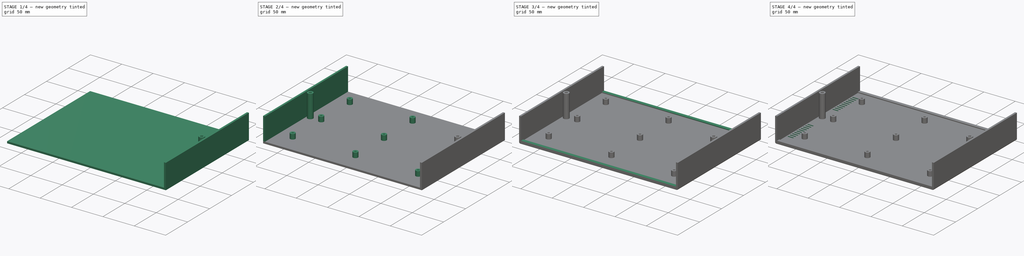
[diagram: build sequence overview — one tinted view per stage of 4, left to right]
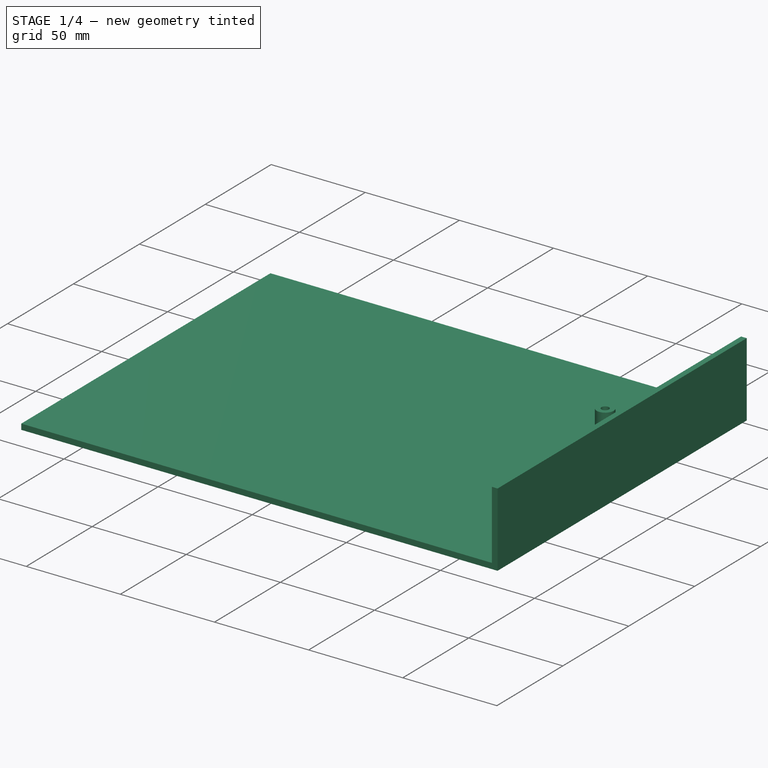
[diagram: stage 1 of 4 — iso view after this stage's code; geometry added in this stage tinted green]
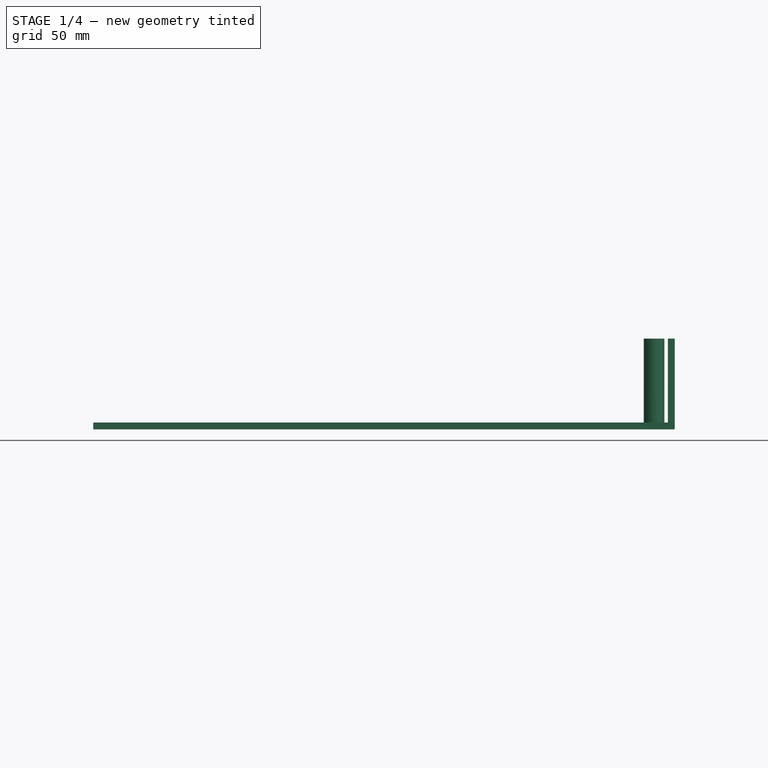
[diagram: stage 1 of 4 — front view after this stage's code; geometry added in this stage tinted green]
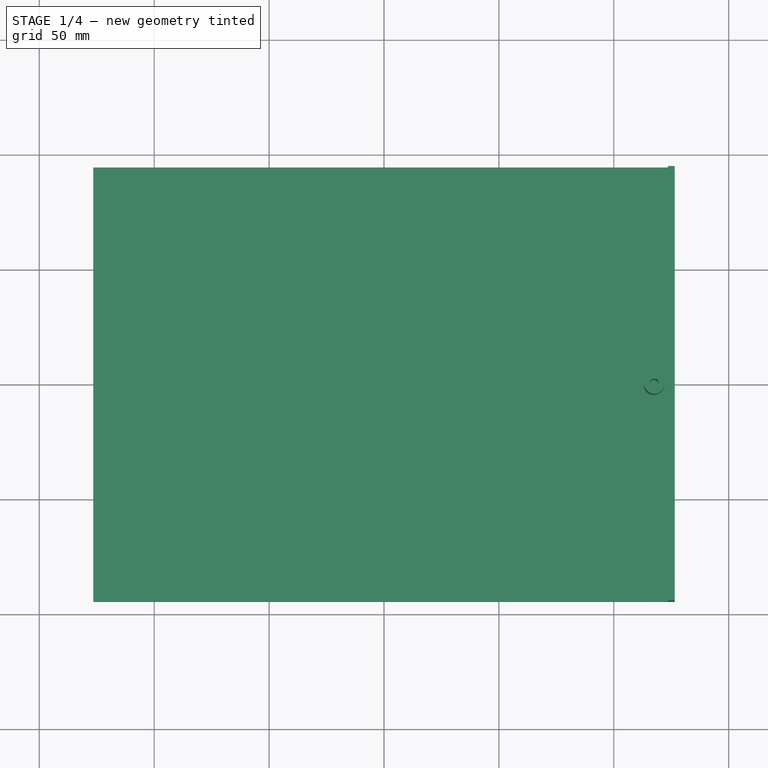
[diagram: stage 1 of 4 — top view after this stage's code; geometry added in this stage tinted green]
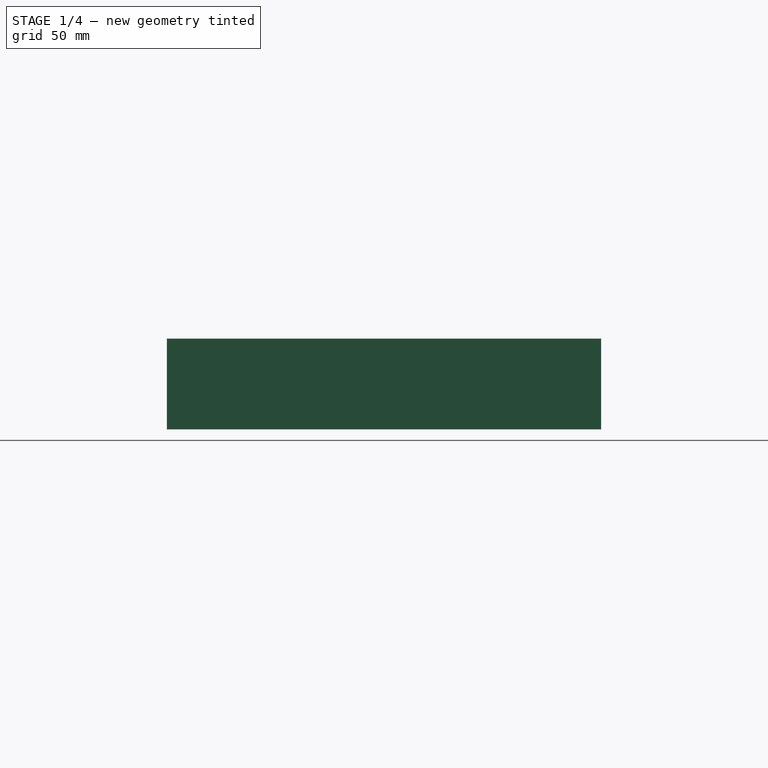
[diagram: stage 1 of 4 — right view after this stage's code; geometry added in this stage tinted green]
FCSTD DOCUMENT  (FreeCAD 1.0R39319 (Git))
Label: Flat Base
License: All rights reserved
LicenseURL: http://en.wikipedia.org/wiki/All_rights_reserved
objects: Sketcher::SketchObject×5, PartDesign::Pad×4, PartDesign::Mirrored×4, PartDesign::Fillet×1, PartDesign::Pocket×1, PartDesign::Body×1, Image::ImagePlane×1
note: 37 computed .brp shape members not serialized (recipe doc carries the construction recipe); baked Part::Feature solids carry a one-line shape summary decoded from their .brp

FEATURE [Sketcher::SketchObject] Sketch
  ArcFitTolerance = 0
  AttachmentSupport = -> [XY_Plane]
  FullyConstrained = true
  MakeInternals = false
  MapMode = 5
  sketch-geometry (4):
    g0: LineSegment StartX=-126.5 StartY=94.5 StartZ=0 EndX=126.5 EndY=94.5 EndZ=0
    g1: LineSegment StartX=126.5 StartY=94.5 StartZ=0 EndX=126.5 EndY=-94.5 EndZ=0
    g2: LineSegment StartX=126.5 StartY=-94.5 StartZ=0 EndX=-126.5 EndY=-94.5 EndZ=0
    g3: LineSegment StartX=-126.5 StartY=-94.5 StartZ=0 EndX=-126.5 EndY=94.5 EndZ=0
  constraints (10):
    c: Coincident(g0,g1)
    c: Coincident(g1,g2)
    c: Coincident(g2,g3)
    c: Coincident(g3,g0)
    c: Horizontal(g2)
    c: Vertical(g1)
    c: Symmetric(g0,g0,g-2)
    c: Symmetric(g2,g0,g-1)
    c: DistanceX(g0,g0) = 253
    c: DistanceY(g1,g1) = 189
FEATURE [PartDesign::Pad] Pad
  AllowMultiFace = false
  Direction = (0,0,1)
  Length = 3
  Length2 = 100
  Profile = -> Sketch
  Suppressed = false
  Type = 0
FEATURE [Sketcher::SketchObject] Sketch001
  ArcFitTolerance = 0
  AttachmentSupport = -> [Pad]
  FullyConstrained = true
  MakeInternals = false
  MapMode = 5
  Placement = pos=(0,0,3) rot=(0,0,1;0rad)
  sketch-geometry (6):
    g0: LineSegment StartX=126.5 StartY=94.5 StartZ=0 EndX=123.5 EndY=94.5 EndZ=0
    g1: LineSegment StartX=123.5 StartY=94.5 StartZ=0 EndX=123.5 EndY=-94.5 EndZ=0
    g2: LineSegment StartX=123.5 StartY=-94.5 StartZ=0 EndX=126.5 EndY=-94.5 EndZ=0
    g3: LineSegment StartX=126.5 StartY=-94.5 StartZ=0 EndX=126.5 EndY=94.5 EndZ=0
    g4: Circle CenterX=117.5 CenterY=0 CenterZ=0 NormalX=0 NormalY=0 NormalZ=1 AngleXU=0 Radius=4.5
    g5: Circle CenterX=117.5 CenterY=0 CenterZ=0 NormalX=0 NormalY=0 NormalZ=1 AngleXU=0 Radius=2
  constraints (16):
    c: Coincident(g0,g1)
    c: Coincident(g1,g2)
    c: Coincident(g2,g3)
    c: Coincident(g3,g0)
    c: Horizontal(g0)
    c: Horizontal(g2)
    c: Vertical(g1)
    c: Symmetric(g0,g2,g-1)
    c: DistanceX(g0,g0) = 3
    c: DistanceX(g-1,g0) = 126.5
    c: DistanceY(g3,g3) = 189
    c: PointOnObject(g4,g-1)
    c: Coincident(g5,g4)
    c: Diameter(g5) = 4
    c: Diameter(g4) = 9
    c: DistanceX(g4) = 117.5
FEATURE [PartDesign::Pad] Pad001
  AllowMultiFace = false
  BaseFeature = -> Pad
  Direction = (0,0,1)
  Length = 36.5
  Length2 = 100
  Profile = -> Sketch001
  Suppressed = false
  Type = 0
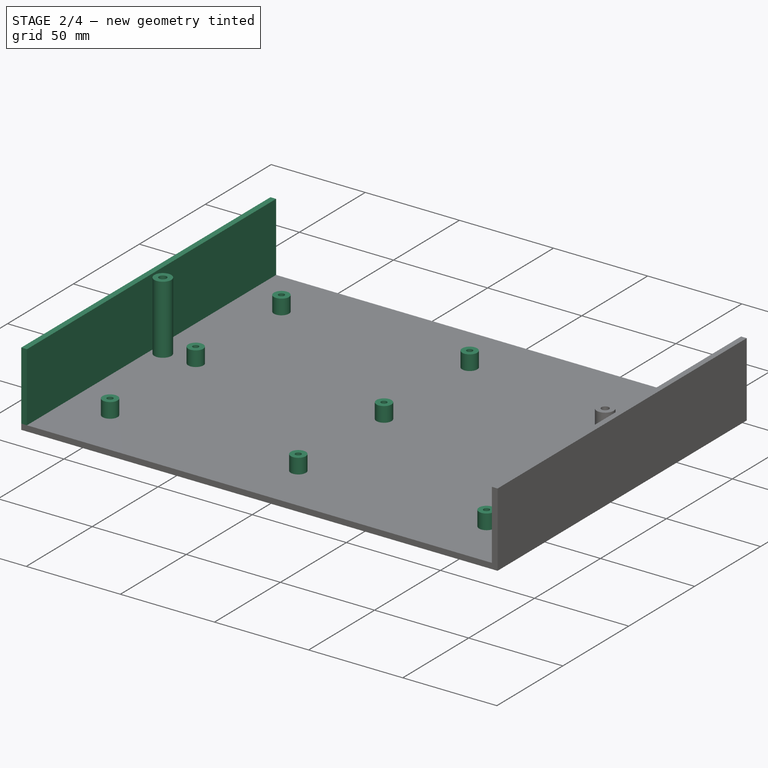
[diagram: stage 2 of 4 — iso view after this stage's code; geometry added in this stage tinted green]
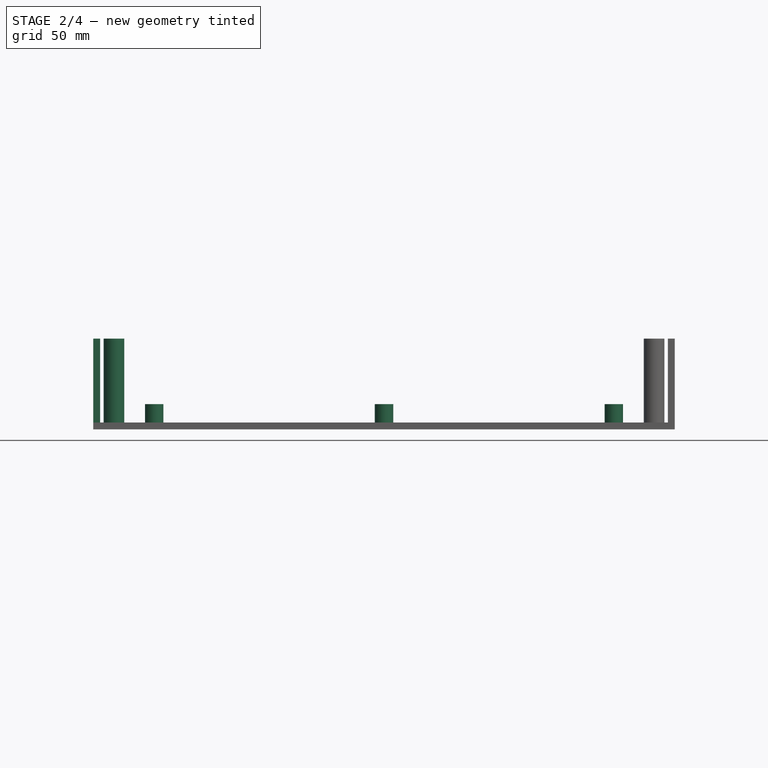
[diagram: stage 2 of 4 — front view after this stage's code; geometry added in this stage tinted green]
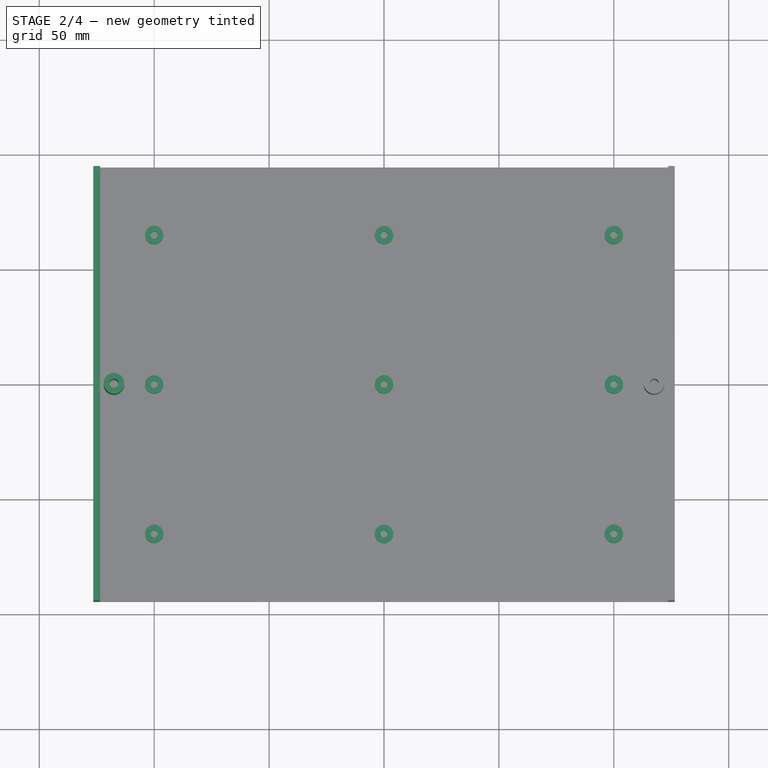
[diagram: stage 2 of 4 — top view after this stage's code; geometry added in this stage tinted green]
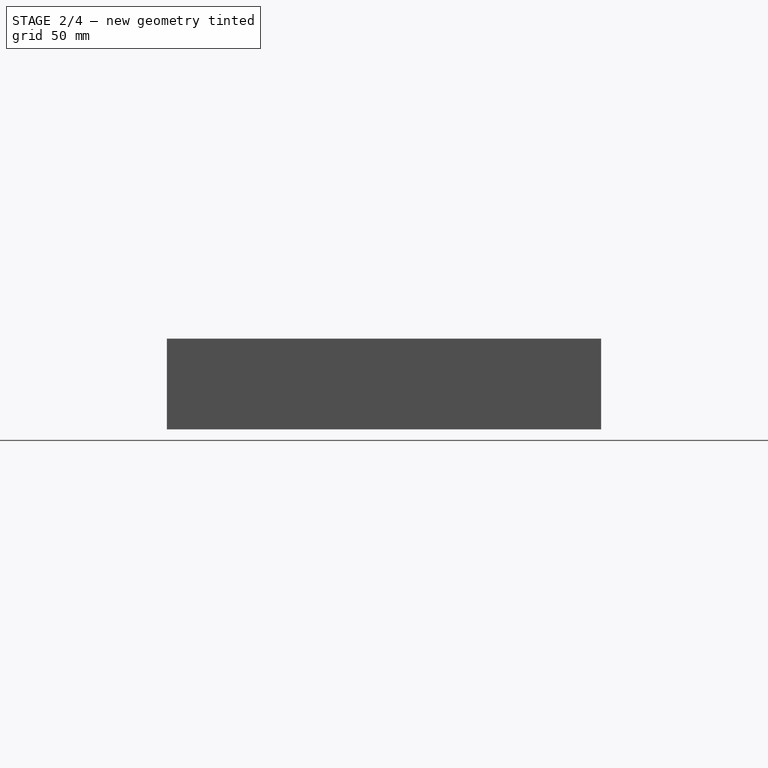
[diagram: stage 2 of 4 — right view after this stage's code; geometry added in this stage tinted green]
FEATURE [Sketcher::SketchObject] Sketch005  label="Sketch004"
  ArcFitTolerance = 0
  FullyConstrained = true
  MakeInternals = false
  MapMode = 5
  Placement = pos=(0,0,3) rot=(0,0,1;0rad)
  sketch-geometry (8):
    g0: LineSegment StartX=0 StartY=89.5 StartZ=0 EndX=123.5 EndY=89.5 EndZ=0
    g1: LineSegment StartX=123.5 StartY=89.5 StartZ=0 EndX=123.5 EndY=94.5 EndZ=0
    g2: LineSegment StartX=123.5 StartY=94.5 StartZ=0 EndX=0 EndY=94.5 EndZ=0
    g3: LineSegment StartX=0 StartY=94.5 StartZ=0 EndX=0 EndY=89.5 EndZ=0
    g4: LineSegment StartX=0 StartY=-94.5 StartZ=0 EndX=123.5 EndY=-94.5 EndZ=0
    g5: LineSegment StartX=123.5 StartY=-94.5 StartZ=0 EndX=123.5 EndY=-89.5 EndZ=0
    g6: LineSegment StartX=123.5 StartY=-89.5 StartZ=0 EndX=0 EndY=-89.5 EndZ=0
    g7: LineSegment StartX=0 StartY=-89.5 StartZ=0 EndX=0 EndY=-94.5 EndZ=0
  constraints (23):
    c: Coincident(g0,g1)
    c: Coincident(g1,g2)
    c: Coincident(g2,g3)
    c: Coincident(g3,g0)
    c: Horizontal(g0)
    c: Horizontal(g2)
    c: Vertical(g1)
    c: Vertical(g3)
    c: PointOnObject(g0,g-2)
    c: Coincident(g4,g5)
    c: Coincident(g5,g6)
    c: Coincident(g6,g7)
    c: Coincident(g7,g4)
    c: Horizontal(g4)
    c: Horizontal(g6)
    c: Vertical(g5)
    c: Vertical(g7)
    c: PointOnObject(g4,g-2)
    c: Symmetric(g4,g1,g-1)
    c: Equal(g1,g5)
    c: DistanceY(g1,g1) = 5
    c: DistanceX(g2,g2) = 123.5
    c: DistanceY(g4,g2) = 189
FEATURE [Sketcher::SketchObject] Sketch006  label="Sketch003"
  ArcFitTolerance = 0
  AttachmentSupport = -> [Pad001]
  FullyConstrained = true
  MakeInternals = false
  MapMode = 5
  Placement = pos=(0,0,3) rot=(0,0,1;0rad)
  sketch-geometry (12):
    g0: Circle CenterX=100 CenterY=65 CenterZ=0 NormalX=0 NormalY=0 NormalZ=1 AngleXU=0 Radius=4
    g1: Circle CenterX=100 CenterY=-65 CenterZ=0 NormalX=0 NormalY=0 NormalZ=1 AngleXU=0 Radius=4
    g2: Circle CenterX=0 CenterY=65 CenterZ=0 NormalX=0 NormalY=0 NormalZ=1 AngleXU=0 Radius=4
    g3: Circle CenterX=0 CenterY=0 CenterZ=0 NormalX=0 NormalY=0 NormalZ=1 AngleXU=0 Radius=4
    g4: Circle CenterX=0 CenterY=-65 CenterZ=0 NormalX=0 NormalY=0 NormalZ=1 AngleXU=0 Radius=4
    g5: Circle CenterX=100 CenterY=65 CenterZ=0 NormalX=0 NormalY=0 NormalZ=1 AngleXU=0 Radius=1.55
    g6: Circle CenterX=0 CenterY=65 CenterZ=0 NormalX=0 NormalY=0 NormalZ=1 AngleXU=0 Radius=1.55
    g7: Circle CenterX=0 CenterY=0 CenterZ=0 NormalX=0 NormalY=0 NormalZ=1 AngleXU=0 Radius=1.55
    g8: Circle CenterX=100 CenterY=0 CenterZ=0 NormalX=0 NormalY=0 NormalZ=1 AngleXU=0 Radius=1.55
    g9: Circle CenterX=100 CenterY=-65 CenterZ=0 NormalX=0 NormalY=0 NormalZ=1 AngleXU=0 Radius=1.55
    g10: Circle CenterX=0 CenterY=-65 CenterZ=0 NormalX=0 NormalY=0 NormalZ=1 AngleXU=0 Radius=1.55
    g11: Circle CenterX=100 CenterY=0 CenterZ=0 NormalX=0 NormalY=0 NormalZ=1 AngleXU=0 Radius=4
  constraints (28):
    c: PointOnObject(g2,g-2)
    c: Coincident(g3,g-1)
    c: Equal(g0,g2)
    c: Equal(g2,g3)
    c: Equal(g1,g4)
    c: Symmetric(g2,g4,g-1)
    c: Horizontal(g2,g0)
    c: Horizontal(g1,g4)
    c: Diameter(g3) = 8
    c: DistanceX(g2,g0) = 100
    c: DistanceY(g3,g2) = 65
    c: Coincident(g5,g0)
    c: Coincident(g7,g3)
    c: Coincident(g9,g1)
    c: Coincident(g10,g4)
    c: Equal(g10,g9)
    c: Equal(g9,g7)
    c: Equal(g7,g8)
    c: Equal(g8,g5)
    c: Equal(g5,g6)
    c: Diameter(g6) = 3.1
    c: Coincident(g6,g2)
    c: PointOnObject(g11,g-1)
    c: Equal(g11,g3)
    c: Coincident(g8,g11)
    c: Vertical(g8,g0)
    c: Vertical(g1,g8)
    c: Equal(g4,g3)
FEATURE [PartDesign::Mirrored] Mirrored
  BaseFeature = -> Pad001
  MirrorPlane = -> YZ_Plane
  Originals = -> [Pad001]
  Suppressed = false
  TransformMode = 0
FEATURE [PartDesign::Pad] Pad002
  AllowMultiFace = false
  BaseFeature = -> Mirrored
  Direction = (0,0,1)
  Length = 8
  Length2 = 100
  Profile = -> Sketch006
  Suppressed = false
  Type = 0
FEATURE [PartDesign::Mirrored] Mirrored001
  BaseFeature = -> Pad002
  MirrorPlane = -> YZ_Plane
  Originals = -> [Pad002]
  Suppressed = false
  TransformMode = 0
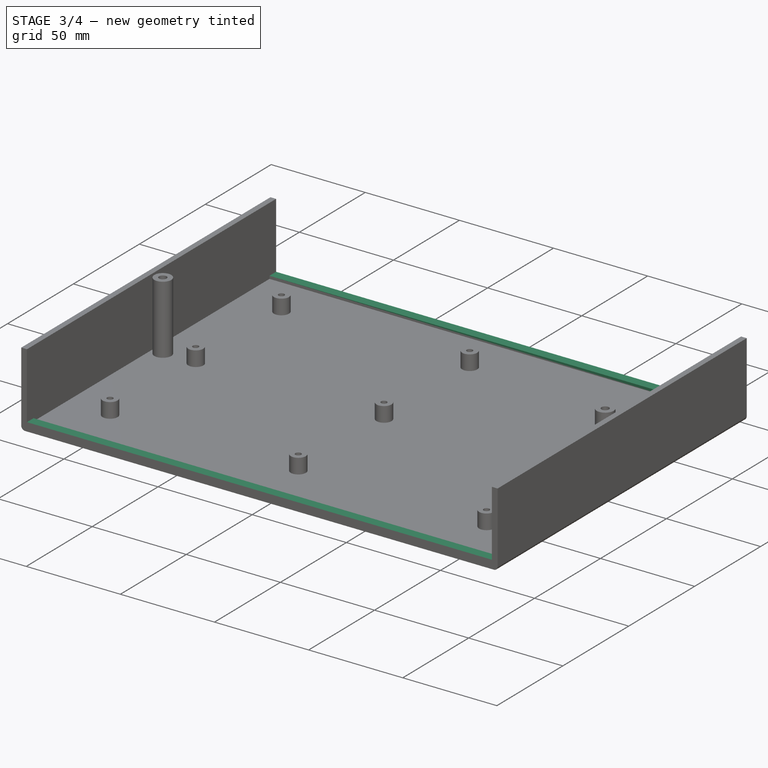
[diagram: stage 3 of 4 — iso view after this stage's code; geometry added in this stage tinted green]
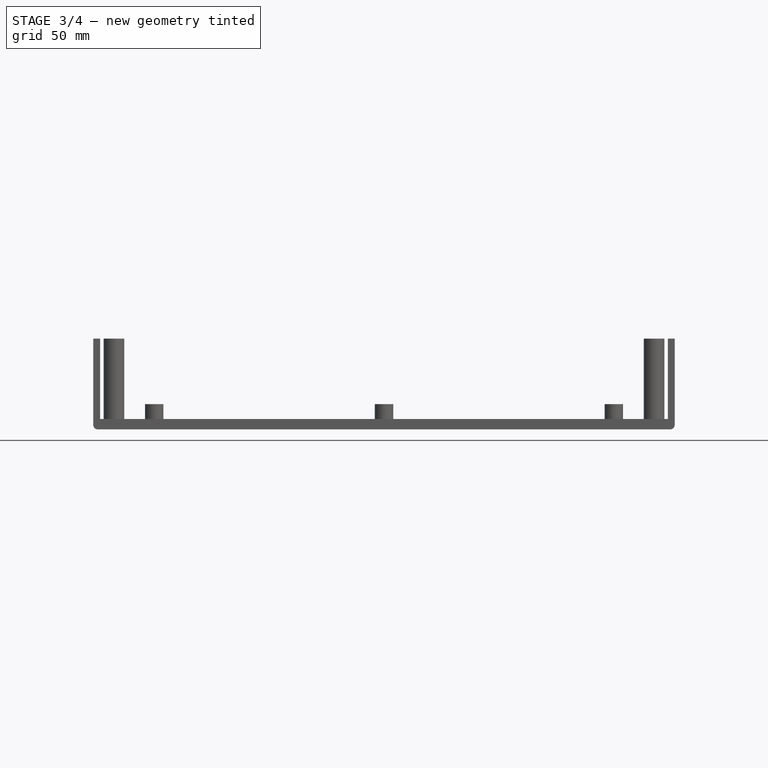
[diagram: stage 3 of 4 — front view after this stage's code; geometry added in this stage tinted green]
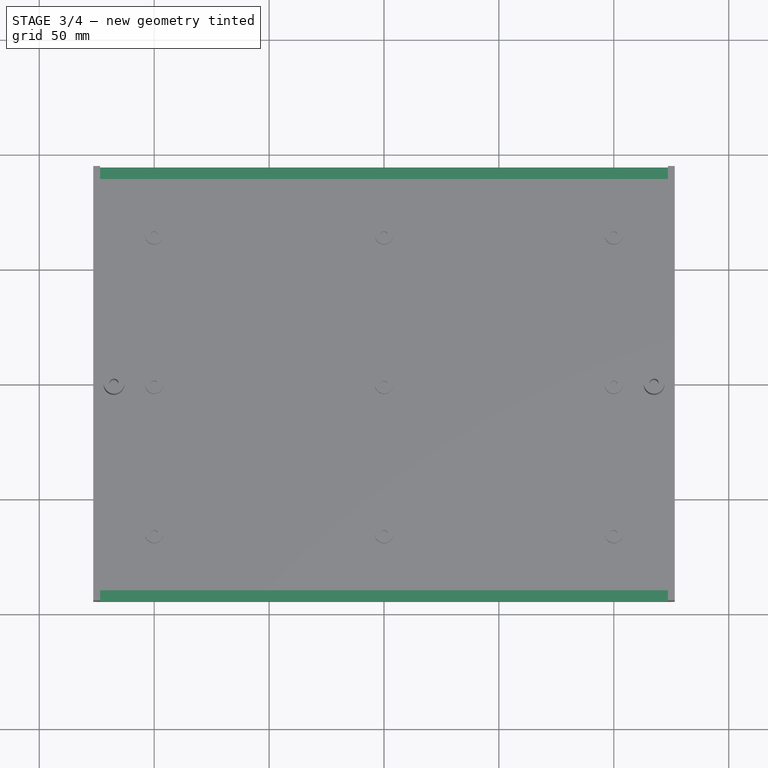
[diagram: stage 3 of 4 — top view after this stage's code; geometry added in this stage tinted green]
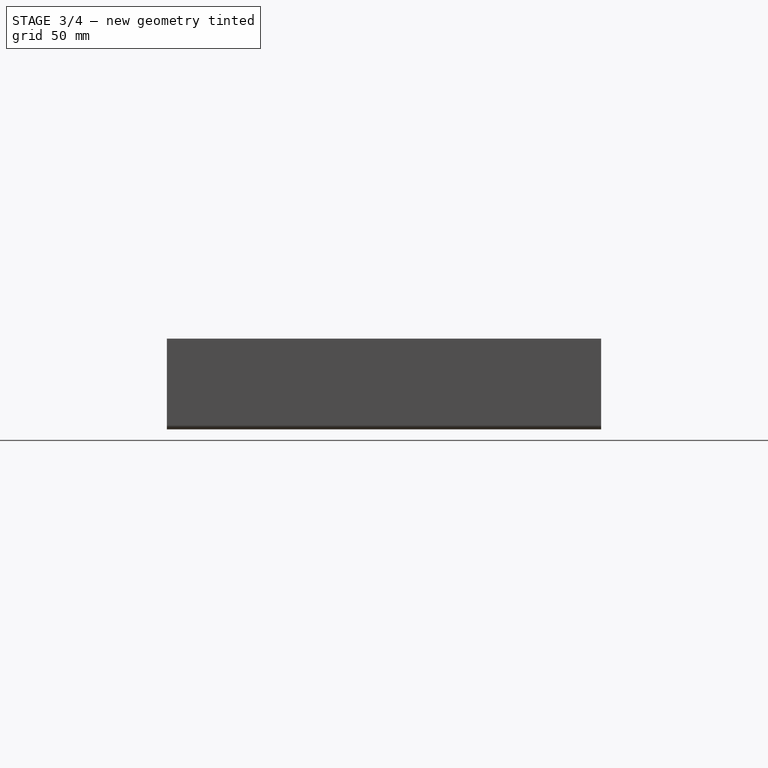
[diagram: stage 3 of 4 — right view after this stage's code; geometry added in this stage tinted green]
FEATURE [PartDesign::Pad] Pad003
  AllowMultiFace = false
  BaseFeature = -> Mirrored001
  Direction = (0,0,1)
  Length = 1.5
  Length2 = 100
  Profile = -> Sketch005
  Suppressed = false
  Type = 0
FEATURE [PartDesign::Mirrored] Mirrored002
  BaseFeature = -> Pad003
  MirrorPlane = -> YZ_Plane
  Originals = -> [Pad003]
  Suppressed = false
  TransformMode = 0
FEATURE [PartDesign::Fillet] Fillet
  Base = -> Mirrored002 [Edge12,Edge9]
  BaseFeature = -> Mirrored002
  Radius = 2
  Refine = true
  SupportTransform = false
  Suppressed = false
  UseAllEdges = false
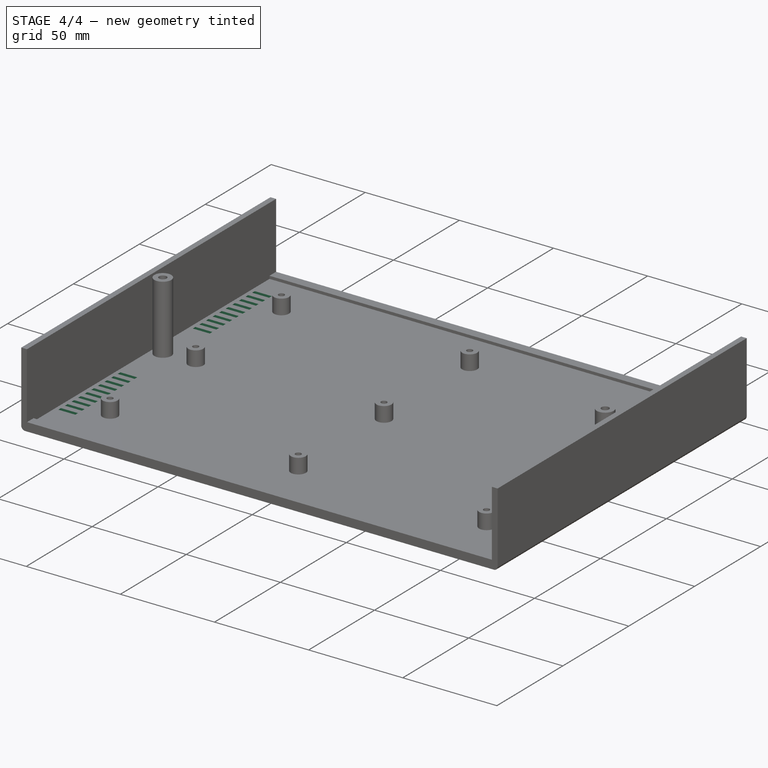
[diagram: stage 4 of 4 — iso view after this stage's code; geometry added in this stage tinted green]
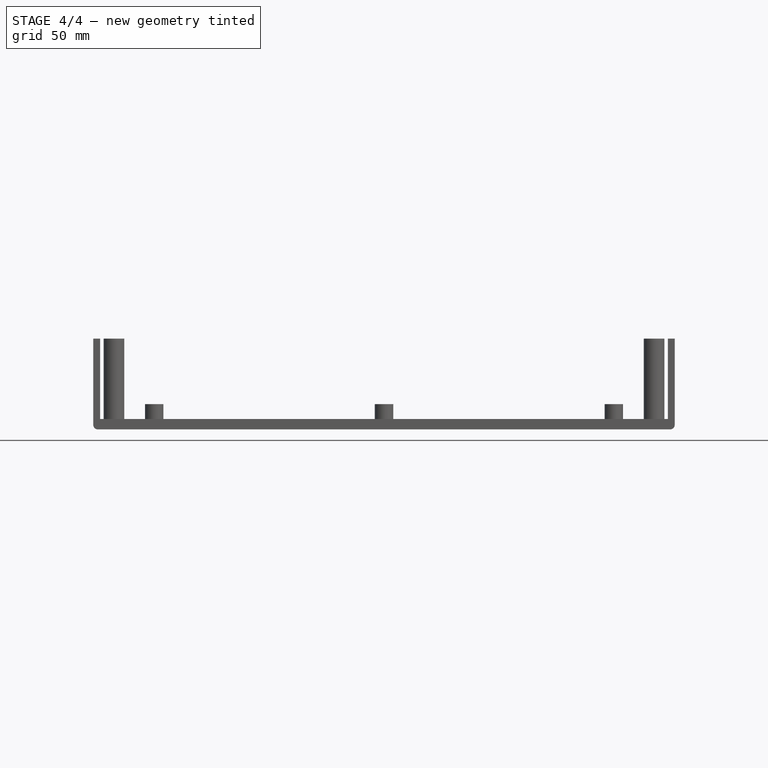
[diagram: stage 4 of 4 — front view after this stage's code; geometry added in this stage tinted green]
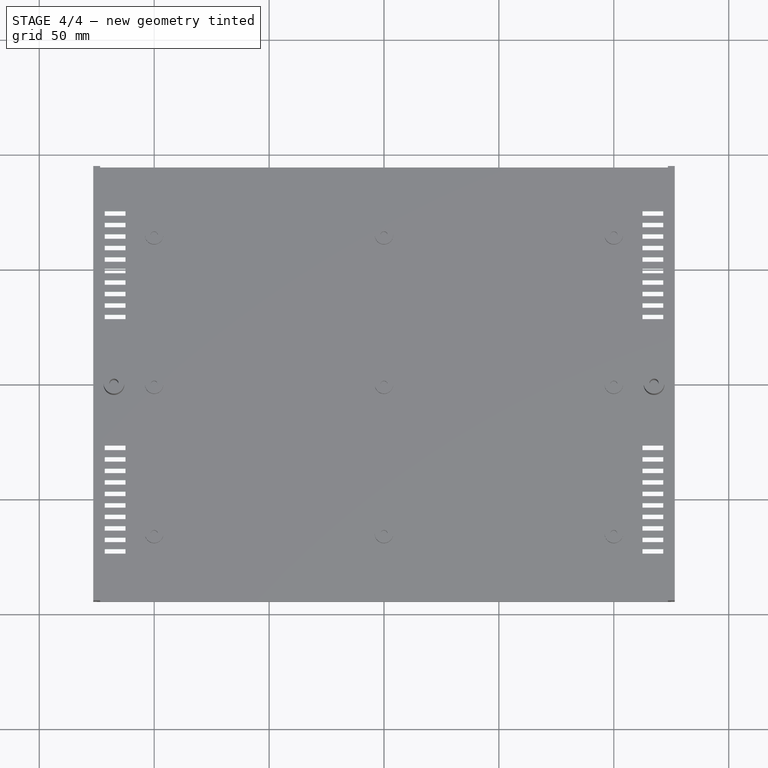
[diagram: stage 4 of 4 — top view after this stage's code; geometry added in this stage tinted green]
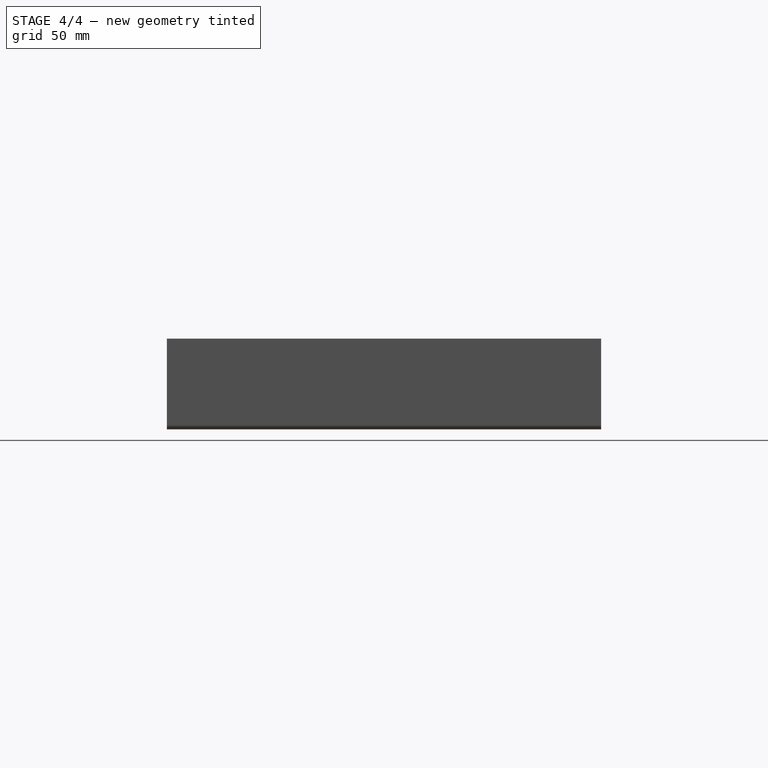
[diagram: stage 4 of 4 — right view after this stage's code; geometry added in this stage tinted green]
FEATURE [Sketcher::SketchObject] Sketch007
  ArcFitTolerance = 0
  AttachmentSupport = -> [Fillet]
  FullyConstrained = false
  MakeInternals = false
  MapMode = 5
  Placement = pos=(0,0,3) rot=(0,0,1;0rad)
  sketch-geometry (80):
    g0: LineSegment StartX=112.5 StartY=73.5 StartZ=0 EndX=121.5 EndY=73.5 EndZ=0
    g1: LineSegment StartX=121.5 StartY=73.5 StartZ=0 EndX=121.5 EndY=71.5 EndZ=0
    g2: LineSegment StartX=121.5 StartY=71.5 StartZ=0 EndX=112.5 EndY=71.5 EndZ=0
    g3: LineSegment StartX=112.5 StartY=71.5 StartZ=0 EndX=112.5 EndY=73.5 EndZ=0
    g4: LineSegment StartX=112.5 StartY=68.5 StartZ=0 EndX=121.5 EndY=68.5 EndZ=0
    g5: LineSegment StartX=121.5 StartY=68.5 StartZ=0 EndX=121.5 EndY=66.5 EndZ=0
    g6: LineSegment StartX=121.5 StartY=66.5 StartZ=0 EndX=112.5 EndY=66.5 EndZ=0
    g7: LineSegment StartX=112.5 StartY=66.5 StartZ=0 EndX=112.5 EndY=68.5 EndZ=0
    g8: LineSegment StartX=112.5 StartY=63.5 StartZ=0 EndX=121.5 EndY=63.5 EndZ=0
    g9: LineSegment StartX=121.5 StartY=63.5 StartZ=0 EndX=121.5 EndY=61.5 EndZ=0
    g10: LineSegment StartX=121.5 StartY=61.5 StartZ=0 EndX=112.5 EndY=61.5 EndZ=0
    g11: LineSegment StartX=112.5 StartY=61.5 StartZ=0 EndX=112.5 EndY=63.5 EndZ=0
    g12: LineSegment StartX=112.5 StartY=58.5 StartZ=0 EndX=121.5 EndY=58.5 EndZ=0
    g13: LineSegment StartX=121.5 StartY=58.5 StartZ=0 EndX=121.5 EndY=56.5 EndZ=0
    g14: LineSegment StartX=121.5 StartY=56.5 StartZ=0 EndX=112.5 EndY=56.5 EndZ=0
    g15: LineSegment StartX=112.5 StartY=56.5 StartZ=0 EndX=112.5 EndY=58.5 EndZ=0
    g16: LineSegment StartX=112.5 StartY=53.5 StartZ=0 EndX=121.5 EndY=53.5 EndZ=0
    g17: LineSegment StartX=121.5 StartY=53.5 StartZ=0 EndX=121.5 EndY=51.5 EndZ=0
    g18: LineSegment StartX=121.5 StartY=51.5 StartZ=0 EndX=112.5 EndY=51.5 EndZ=0
    g19: LineSegment StartX=112.5 StartY=51.5 StartZ=0 EndX=112.5 EndY=53.5 EndZ=0
    g20: LineSegment StartX=112.5 StartY=48.5 StartZ=0 EndX=121.5 EndY=48.5 EndZ=0
    g21: LineSegment StartX=121.5 StartY=48.5 StartZ=0 EndX=121.5 EndY=46.5 EndZ=0
    g22: LineSegment StartX=121.5 StartY=46.5 StartZ=0 EndX=112.5 EndY=46.5 EndZ=0
    g23: LineSegment StartX=112.5 StartY=46.5 StartZ=0 EndX=112.5 EndY=48.5 EndZ=0
    g24: LineSegment StartX=112.5 StartY=43.5 StartZ=0 EndX=121.5 EndY=43.5 EndZ=0
    g25: LineSegment StartX=121.5 StartY=43.5 StartZ=0 EndX=121.5 EndY=41.5 EndZ=0
    g26: LineSegment StartX=121.5 StartY=41.5 StartZ=0 EndX=112.5 EndY=41.5 EndZ=0
    g27: LineSegment StartX=112.5 StartY=41.5 StartZ=0 EndX=112.5 EndY=43.5 EndZ=0
    g28: LineSegment StartX=112.5 StartY=38.5 StartZ=0 EndX=121.5 EndY=38.5 EndZ=0
    g29: LineSegment StartX=121.5 StartY=38.5 StartZ=0 EndX=121.5 EndY=36.5 EndZ=0
    g30: LineSegment StartX=121.5 StartY=36.5 StartZ=0 EndX=112.5 EndY=36.5 EndZ=0
    g31: LineSegment StartX=112.5 StartY=36.5 StartZ=0 EndX=112.5 EndY=38.5 EndZ=0
    g32: LineSegment StartX=112.5 StartY=33.5 StartZ=0 EndX=121.5 EndY=33.5 EndZ=0
    g33: LineSegment StartX=121.5 StartY=33.5 StartZ=0 EndX=121.5 EndY=31.5 EndZ=0
    g34: LineSegment StartX=121.5 StartY=31.5 StartZ=0 EndX=112.5 EndY=31.5 EndZ=0
    g35: LineSegment StartX=112.5 StartY=31.5 StartZ=0 EndX=112.5 EndY=33.5 EndZ=0
    g36: LineSegment StartX=112.5 StartY=26.5 StartZ=0 EndX=121.5 EndY=26.5 EndZ=0
    g37: LineSegment StartX=121.5 StartY=26.5 StartZ=0 EndX=121.5 EndY=28.5 EndZ=0
    g38: LineSegment StartX=121.5 StartY=28.5 StartZ=0 EndX=112.5 EndY=28.5 EndZ=0
    g39: LineSegment StartX=112.5 StartY=28.5 StartZ=0 EndX=112.5 EndY=26.5 EndZ=0
    g40: LineSegment StartX=112.5 StartY=-28.5 StartZ=0 EndX=121.5 EndY=-28.5 EndZ=0
    g41: LineSegment StartX=121.5 StartY=-28.5 StartZ=0 EndX=121.5 EndY=-30.5 EndZ=0
    g42: LineSegment StartX=121.5 StartY=-30.5 StartZ=0 EndX=112.5 EndY=-30.5 EndZ=0
    g43: LineSegment StartX=112.5 StartY=-30.5 StartZ=0 EndX=112.5 EndY=-28.5 EndZ=0
    g44: LineSegment StartX=112.5 StartY=-33.5 StartZ=0 EndX=121.5 EndY=-33.5 EndZ=0
    g45: LineSegment StartX=121.5 StartY=-33.5 StartZ=0 EndX=121.5 EndY=-35.5 EndZ=0
    g46: LineSegment StartX=121.5 StartY=-35.5 StartZ=0 EndX=112.5 EndY=-35.5 EndZ=0
    g47: LineSegment StartX=112.5 StartY=-35.5 StartZ=0 EndX=112.5 EndY=-33.5 EndZ=0
    g48: LineSegment StartX=112.5 StartY=-38.5 StartZ=0 EndX=121.5 EndY=-38.5 EndZ=0
    g49: LineSegment StartX=121.5 StartY=-38.5 StartZ=0 EndX=121.5 EndY=-40.5 EndZ=0
    g50: LineSegment StartX=121.5 StartY=-40.5 StartZ=0 EndX=112.5 EndY=-40.5 EndZ=0
    g51: LineSegment StartX=112.5 StartY=-40.5 StartZ=0 EndX=112.5 EndY=-38.5 EndZ=0
    g52: LineSegment StartX=112.5 StartY=-43.5 StartZ=0 EndX=121.5 EndY=-43.5 EndZ=0
    g53: LineSegment StartX=121.5 StartY=-43.5 StartZ=0 EndX=121.5 EndY=-45.5 EndZ=0
    g54: LineSegment StartX=121.5 StartY=-45.5 StartZ=0 EndX=112.5 EndY=-45.5 EndZ=0
    g55: LineSegment StartX=112.5 StartY=-45.5 StartZ=0 EndX=112.5 EndY=-43.5 EndZ=0
    g56: LineSegment StartX=112.5 StartY=-48.5 StartZ=0 EndX=121.5 EndY=-48.5 EndZ=0
    g57: LineSegment StartX=121.5 StartY=-48.5 StartZ=0 EndX=121.5 EndY=-50.5 EndZ=0
    g58: LineSegment StartX=121.5 StartY=-50.5 StartZ=0 EndX=112.5 EndY=-50.5 EndZ=0
    g59: LineSegment StartX=112.5 StartY=-50.5 StartZ=0 EndX=112.5 EndY=-48.5 EndZ=0
    g60: LineSegment StartX=112.5 StartY=-53.5 StartZ=0 EndX=121.5 EndY=-53.5 EndZ=0
    g61: LineSegment StartX=121.5 StartY=-53.5 StartZ=0 EndX=121.5 EndY=-55.5 EndZ=0
    g62: LineSegment StartX=121.5 StartY=-55.5 StartZ=0 EndX=112.5 EndY=-55.5 EndZ=0
    g63: LineSegment StartX=112.5 StartY=-55.5 StartZ=0 EndX=112.5 EndY=-53.5 EndZ=0
    g64: LineSegment StartX=112.5 StartY=-58.5 StartZ=0 EndX=121.5 EndY=-58.5 EndZ=0
    g65: LineSegment StartX=121.5 StartY=-58.5 StartZ=0 EndX=121.5 EndY=-60.5 EndZ=0
    g66: LineSegment StartX=121.5 StartY=-60.5 StartZ=0 EndX=112.5 EndY=-60.5 EndZ=0
    g67: LineSegment StartX=112.5 StartY=-60.5 StartZ=0 EndX=112.5 EndY=-58.5 EndZ=0
    g68: LineSegment StartX=112.5 StartY=-63.5 StartZ=0 EndX=121.5 EndY=-63.5 EndZ=0
    g69: LineSegment StartX=121.5 StartY=-63.5 StartZ=0 EndX=121.5 EndY=-65.5 EndZ=0
    g70: LineSegment StartX=121.5 StartY=-65.5 StartZ=0 EndX=112.5 EndY=-65.5 EndZ=0
    g71: LineSegment StartX=112.5 StartY=-65.5 StartZ=0 EndX=112.5 EndY=-63.5 EndZ=0
    g72: LineSegment StartX=112.5 StartY=-68.5 StartZ=0 EndX=121.5 EndY=-68.5 EndZ=0
    g73: LineSegment StartX=121.5 StartY=-68.5 StartZ=0 EndX=121.5 EndY=-70.5 EndZ=0
    g74: LineSegment StartX=121.5 StartY=-70.5 StartZ=0 EndX=112.5 EndY=-70.5 EndZ=0
    g75: LineSegment StartX=112.5 StartY=-70.5 StartZ=0 EndX=112.5 EndY=-68.5 EndZ=0
    g76: LineSegment StartX=112.5 StartY=-73.5 StartZ=0 EndX=121.5 EndY=-73.5 EndZ=0
    g77: LineSegment StartX=121.5 StartY=-73.5 StartZ=0 EndX=121.5 EndY=-75.5 EndZ=0
    g78: LineSegment StartX=121.5 StartY=-75.5 StartZ=0 EndX=112.5 EndY=-75.5 EndZ=0
    g79: LineSegment StartX=112.5 StartY=-75.5 StartZ=0 EndX=112.5 EndY=-73.5 EndZ=0
  constraints (241):
    c: Coincident(g0,g1)
    c: Coincident(g1,g2)
    c: Coincident(g2,g3)
    c: Coincident(g3,g0)
    c: Horizontal(g0)
    c: Horizontal(g2)
    c: Vertical(g1)
    c: Vertical(g3)
    c: DistanceX(g0,g0) = 9
    c: DistanceY(g3,g3) = 2
    c: Coincident(g4,g5)
    c: Coincident(g5,g6)
    c: Coincident(g6,g7)
    c: Coincident(g7,g4)
    c: Horizontal(g4)
    c: Horizontal(g6)
    c: Vertical(g5)
    c: Vertical(g7)
    c: Equal(g0,g4) = 9
    c: Equal(g3,g7) = 2
    c: Vertical(g4,g1)
    c: DistanceY(g4,g0) = 5
    c: Coincident(g8,g9)
    c: Coincident(g9,g10)
    c: Coincident(g10,g11)
    c: Coincident(g11,g8)
    c: Horizontal(g8)
    c: Horizontal(g10)
    c: Vertical(g9)
    c: Vertical(g11)
    c: Equal(g0,g8) = 9
    c: Equal(g3,g11) = 2
    c: Coincident(g12,g13)
    c: Coincident(g13,g14)
    c: Coincident(g14,g15)
    c: Coincident(g15,g12)
    c: Horizontal(g12)
    c: Horizontal(g14)
    c: Vertical(g13)
    c: Vertical(g15)
    c: Equal(g8,g12) = 9
    c: Equal(g11,g15) = 2
    c: Vertical(g12,g9)
    c: DistanceY(g12,g8) = 5
    c: DistanceY(g8,g4) = 5
    c: Coincident(g16,g17)
    c: Coincident(g17,g18)
    c: Coincident(g18,g19)
    c: Coincident(g19,g16)
    c: Horizontal(g16)
    c: Horizontal(g18)
    c: Vertical(g17)
    c: Vertical(g19)
    c: Equal(g0,g16) = 9
    c: Equal(g3,g19) = 2
    c: Coincident(g20,g21)
    c: Coincident(g21,g22)
    c: Coincident(g22,g23)
    c: Coincident(g23,g20)
    c: Horizontal(g20)
    c: Horizontal(g22)
    c: Vertical(g21)
    c: Vertical(g23)
    c: Equal(g16,g20) = 9
    c: Equal(g19,g23) = 2
    c: Vertical(g20,g17)
    c: DistanceY(g20,g16) = 5
    c: Coincident(g24,g25)
    c: Coincident(g25,g26)
    c: Coincident(g26,g27)
    c: Coincident(g27,g24)
    c: Horizontal(g24)
    c: Horizontal(g26)
    c: Vertical(g25)
    c: Vertical(g27)
    c: Equal(g16,g24) = 9
    c: Equal(g19,g27) = 2
    c: Coincident(g28,g29)
    c: Coincident(g29,g30)
    c: Coincident(g30,g31)
    c: Coincident(g31,g28)
    c: Horizontal(g28)
    c: Horizontal(g30)
    c: Vertical(g29)
    c: Vertical(g31)
    c: Equal(g24,g28) = 9
    c: Equal(g27,g31) = 2
    c: Vertical(g28,g25)
    c: DistanceY(g28,g24) = 5
    c: DistanceY(g24,g20) = 5
    c: Vertical(g21,g24)
    c: Vertical(g13,g16)
    c: Vertical(g5,g8)
    c: DistanceY(g16,g12) = 5
    c: Coincident(g32,g33)
    c: Coincident(g33,g34)
    c: Coincident(g34,g35)
    c: Coincident(g35,g32)
    c: Horizontal(g32)
    c: Horizontal(g34)
    c: Vertical(g33)
    c: Vertical(g35)
    c: Coincident(g36,g37)
    c: Coincident(g37,g38)
    c: Coincident(g38,g39)
    c: Coincident(g39,g36)
    c: Horizontal(g36)
    c: Horizontal(g38)
    c: Vertical(g37)
    c: Vertical(g39)
    c: Equal(g32,g36) = 9
    c: Vertical(g36,g33)
    c: Equal(g35,g39)
    c: Equal(g39,g31)
    c: Vertical(g28,g32)
    c: DistanceY(g32,g28) = 5
    c: Equal(g32,g36)
    c: Equal(g36,g28)
    c: Coincident(g40,g41)
    c: Coincident(g41,g42)
    c: Coincident(g42,g43)
    c: Coincident(g43,g40)
    c: Horizontal(g40)
    c: Horizontal(g42)
    c: Vertical(g41)
    c: Vertical(g43)
    c: Equal(g0,g40) = 9
    c: Equal(g3,g43) = 2
    c: Coincident(g44,g45)
    c: Coincident(g45,g46)
    c: Coincident(g46,g47)
    c: Coincident(g47,g44)
    c: Horizontal(g44)
    c: Horizontal(g46)
    c: Vertical(g45)
    c: Vertical(g47)
    c: Equal(g40,g44) = 9
    c: Equal(g43,g47) = 2
    c: Vertical(g44,g41)
    c: DistanceY(g44,g40) = 5
    c: Coincident(g48,g49)
    c: Coincident(g49,g50)
    c: Coincident(g50,g51)
    c: Coincident(g51,g48)
    c: Horizontal(g48)
    c: Horizontal(g50)
    c: Vertical(g49)
    c: Vertical(g51)
    c: Equal(g40,g48) = 9
    c: Equal(g43,g51) = 2
    c: Coincident(g52,g53)
    c: Coincident(g53,g54)
    c: Coincident(g54,g55)
    c: Coincident(g55,g52)
    c: Horizontal(g52)
    c: Horizontal(g54)
    c: Vertical(g53)
    c: Vertical(g55)
    c: Equal(g48,g52) = 9
    c: Equal(g51,g55) = 2
    c: Vertical(g52,g49)
    c: DistanceY(g52,g48) = 5
    c: DistanceY(g48,g44) = 5
    c: Coincident(g56,g57)
    c: Coincident(g57,g58)
    c: Coincident(g58,g59)
    c: Coincident(g59,g56)
    c: Horizontal(g56)
    c: Horizontal(g58)
    c: Vertical(g57)
    c: Vertical(g59)
    c: Equal(g40,g56) = 9
    c: Equal(g43,g59) = 2
    c: Coincident(g60,g61)
    c: Coincident(g61,g62)
    c: Coincident(g62,g63)
    c: Coincident(g63,g60)
    c: Horizontal(g60)
    c: Horizontal(g62)
    c: Vertical(g61)
    c: Vertical(g63)
    c: Equal(g56,g60) = 9
    c: Equal(g59,g63) = 2
    c: Vertical(g60,g57)
    c: DistanceY(g60,g56) = 5
    c: Coincident(g64,g65)
    c: Coincident(g65,g66)
    c: Coincident(g66,g67)
    c: Coincident(g67,g64)
    c: Horizontal(g64)
    c: Horizontal(g66)
    c: Vertical(g65)
    c: Vertical(g67)
    c: Equal(g56,g64) = 9
    c: Equal(g59,g67) = 2
    c: Coincident(g68,g69)
    c: Coincident(g69,g70)
    c: Coincident(g70,g71)
    c: Coincident(g71,g68)
    c: Horizontal(g68)
    c: Horizontal(g70)
    c: Vertical(g69)
    c: Vertical(g71)
    c: Equal(g64,g68) = 9
    c: Equal(g67,g71) = 2
    c: Vertical(g68,g65)
    c: DistanceY(g68,g64) = 5
    c: DistanceY(g64,g60) = 5
    c: Vertical(g61,g64)
    c: Vertical(g53,g56)
    c: Vertical(g45,g48)
    c: DistanceY(g56,g52) = 5
    c: Coincident(g72,g73)
    c: Coincident(g73,g74)
    c: Coincident(g74,g75)
    c: Coincident(g75,g72)
    c: Horizontal(g72)
    c: Horizontal(g74)
    c: Vertical(g73)
    c: Vertical(g75)
    c: Coincident(g76,g77)
    c: Coincident(g77,g78)
    c: Coincident(g78,g79)
    c: Coincident(g79,g76)
    c: Horizontal(g76)
    c: Horizontal(g78)
    c: Vertical(g77)
    c: Vertical(g79)
    c: Equal(g72,g76) = 9
    c: Vertical(g76,g73)
    c: DistanceY(g76,g72) = 5
    c: Equal(g75,g79)
    c: Equal(g79,g71)
    c: Vertical(g68,g72)
    c: DistanceY(g72,g68) = 5
    c: Equal(g72,g76)
    c: Equal(g76,g68)
    c: Symmetric(g40,g38,g-1)
    c: DistanceY(g40,g36) = 55
    c: DistanceY(g37,g32) = 5
    c: DistanceX(g-1,g0) = 121.5
FEATURE [PartDesign::Pocket] Pocket
  AllowMultiFace = false
  BaseFeature = -> Fillet
  Direction = (1,1,1)
  Length = 3
  Length2 = 100
  Profile = -> Sketch007
  Suppressed = false
  Type = 0
FEATURE [PartDesign::Mirrored] Mirrored003
  BaseFeature = -> Pocket
  MirrorPlane = -> YZ_Plane
  Originals = -> [Pocket]
  Suppressed = false
  TransformMode = 0
FEATURE [PartDesign::Body] Body
  AllowCompound = false
  Group = -> [Sketch,Pad,Sketch001,Pad001,Mirrored,Sketch006,Pad002,Mirrored001,Sketch005,Pad003,Mirrored002,Fillet,Sketch007,Pocket,Mirrored003]
  Origin = -> Origin
  Tip = -> Mirrored003
FEATURE [Image::ImagePlane] Flat_Base  label="Flat Base"
  XSize = 198.942
  YSize = 198.677
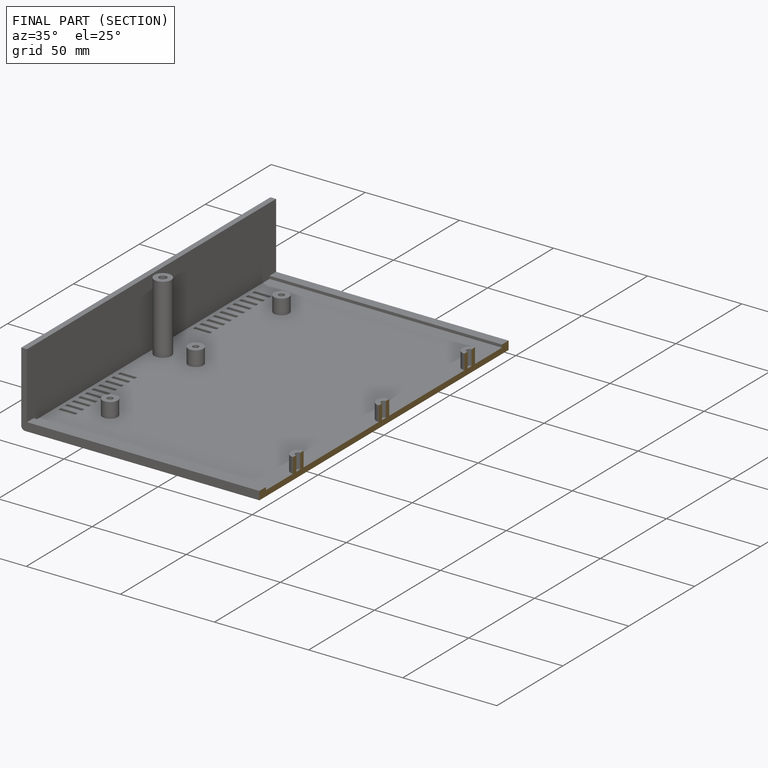
[diagram: finished part — half-section view (interior)]
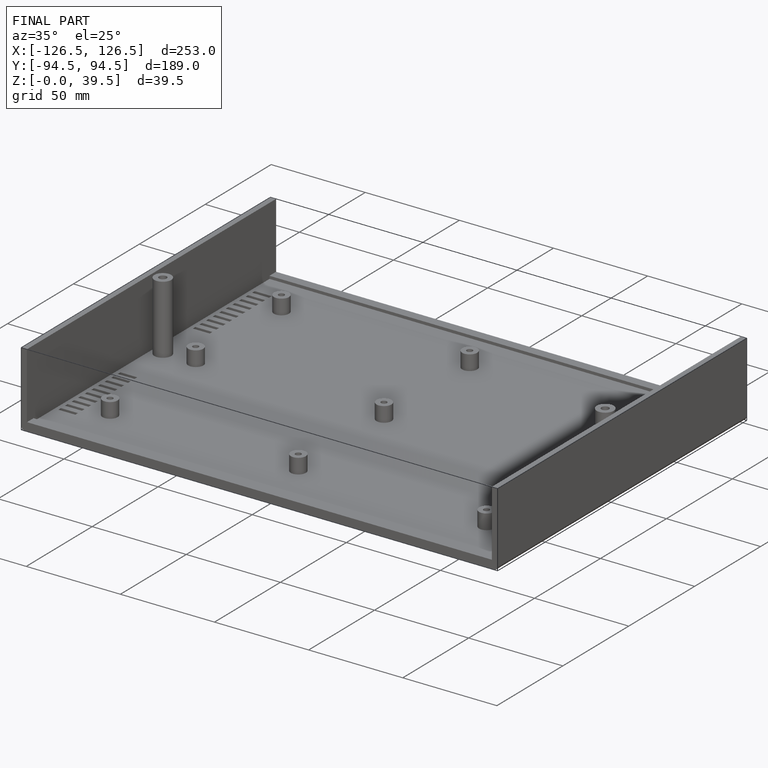
[diagram: finished part — iso view with bounding-box wireframe]
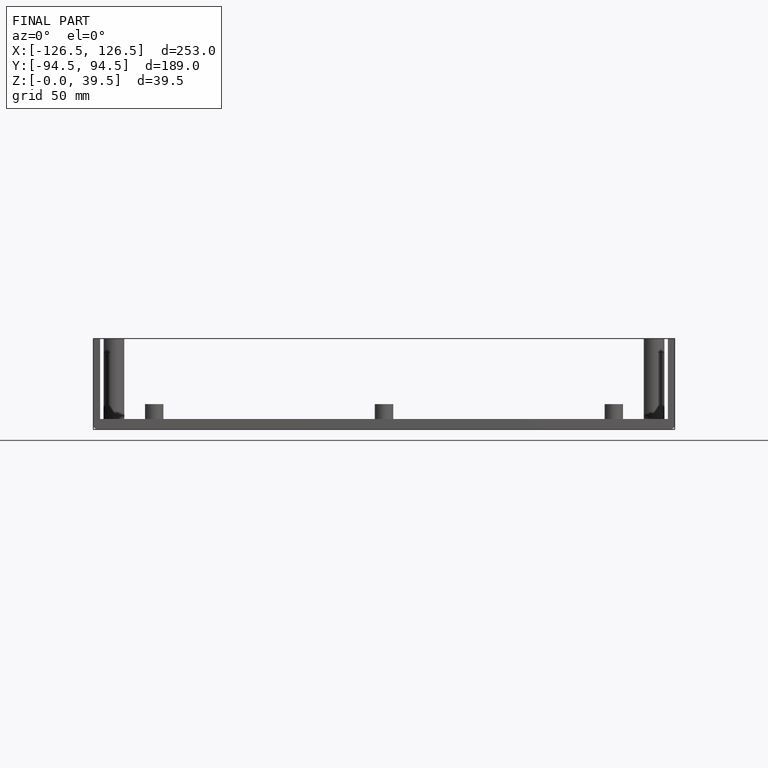
[diagram: finished part — front view with bounding-box wireframe]
